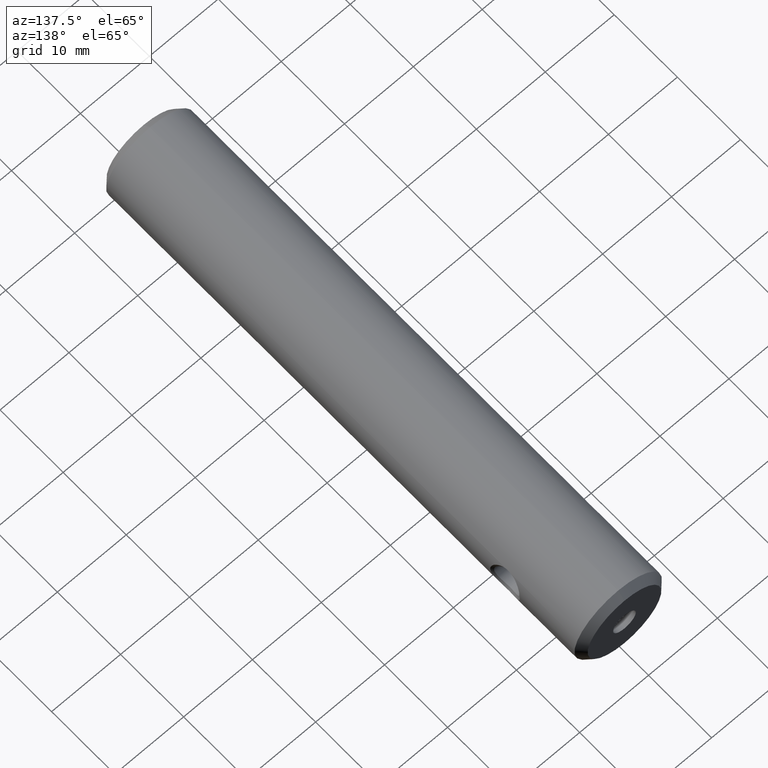
[diagram: clean part render]
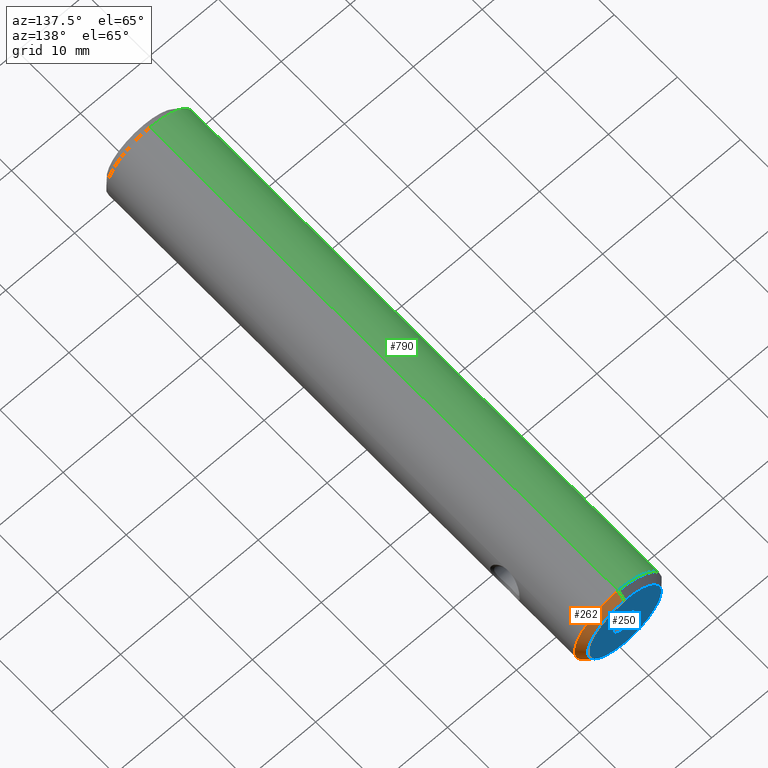
[diagram: same view with three faces highlighted in distinct colors, each labeled with its STEP entity id]
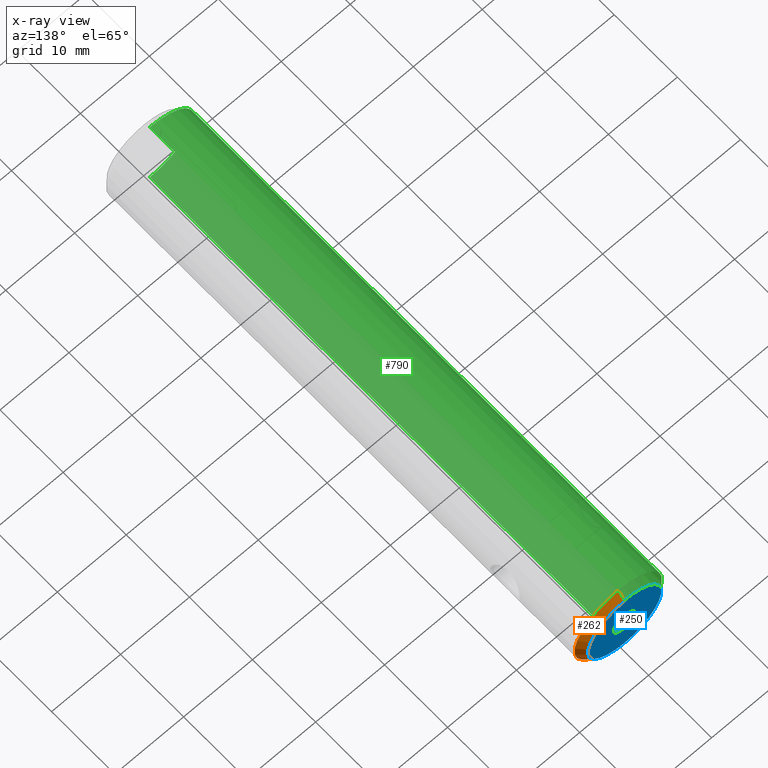
[diagram: x-ray of the same camera — body ghosted, the three highlighted faces saturated]
A machine part, auxiliary view with three faces highlighted in distinct colors.
The next image is the same camera in x-ray (body ghosted, the three faces saturated) — at least one of them is partly hidden behind the body in this view.
Their STEP definitions:

[orange] entity #262 — the highlighted conical surface has half-angle 45 deg.
#8 = CARTESIAN_POINT ( 'NONE',  ( 0.0000000000000000000, 76.20000000000000300, -5.349999999999999600 ) ) ;
#94 = LINE ( 'NONE', #964, #300 ) ;
#105 = CARTESIAN_POINT ( 'NONE',  ( 0.0000000000000000000, 76.20000000000000300, 0.0000000000000000000 ) ) ;
#130 = EDGE_LOOP ( 'NONE', ( #706, #633, #134, #474 ) ) ;
#134 = ORIENTED_EDGE ( 'NONE', *, *, #982, .F. ) ;
#191 = DIRECTION ( 'NONE',  ( 0.0000000000000000000, 0.0000000000000000000, -1.000000000000000000 ) ) ;
#193 = DIRECTION ( 'NONE',  ( -0.0000000000000000000, -1.000000000000000000, -0.0000000000000000000 ) ) ;
#217 = DIRECTION ( 'NONE',  ( 0.0000000000000000000, 0.0000000000000000000, -1.000000000000000000 ) ) ;
#262 = ADVANCED_FACE ( 'NONE', ( #1000 ), #980, .T. ) ;
#300 = VECTOR ( 'NONE', #583, 999.9999999999998900 ) ;
#337 = CARTESIAN_POINT ( 'NONE',  ( 7.164183775012015400E-016, 76.20000000000000300, 5.349999999999999600 ) ) ;
#339 = CARTESIAN_POINT ( 'NONE',  ( 0.0000000000000000000, 76.20000000000000300, 0.0000000000000000000 ) ) ;
#357 = CARTESIAN_POINT ( 'NONE',  ( 0.0000000000000000000, 75.20000000000000300, -6.349999999999999600 ) ) ;
#381 = CARTESIAN_POINT ( 'NONE',  ( 0.0000000000000000000, 75.20000000000000300, 0.0000000000000000000 ) ) ;
#388 = VERTEX_POINT ( 'NONE', #8 ) ;
#425 = EDGE_CURVE ( 'NONE', #388, #450, #987, .T. ) ;
#450 = VERTEX_POINT ( 'NONE', #337 ) ;
#462 = DIRECTION ( 'NONE',  ( 0.0000000000000000000, -0.7071067811865479100, -0.7071067811865472400 ) ) ;
#474 = ORIENTED_EDGE ( 'NONE', *, *, #685, .F. ) ;
#477 = VECTOR ( 'NONE', #462, 999.9999999999998900 ) ;
#523 = AXIS2_PLACEMENT_3D ( 'NONE', #381, #838, #217 ) ;
#531 = EDGE_CURVE ( 'NONE', #450, #846, #94, .T. ) ;
#532 = CARTESIAN_POINT ( 'NONE',  ( 0.0000000000000000000, 76.20000000000000300, -5.349999999999999600 ) ) ;
#583 = DIRECTION ( 'NONE',  ( 8.659560562354930400E-017, -0.7071067811865479100, 0.7071067811865472400 ) ) ;
#626 = AXIS2_PLACEMENT_3D ( 'NONE', #339, #655, #191 ) ;
#633 = ORIENTED_EDGE ( 'NONE', *, *, #531, .T. ) ;
#655 = DIRECTION ( 'NONE',  ( -0.0000000000000000000, -1.000000000000000000, -0.0000000000000000000 ) ) ;
#685 = EDGE_CURVE ( 'NONE', #388, #916, #761, .T. ) ;
#706 = ORIENTED_EDGE ( 'NONE', *, *, #425, .T. ) ;
#722 = CIRCLE ( 'NONE', #523, 6.349999999999999600 ) ;
#734 = DIRECTION ( 'NONE',  ( 0.0000000000000000000, 0.0000000000000000000, -1.000000000000000000 ) ) ;
#761 = LINE ( 'NONE', #532, #477 ) ;
#785 = AXIS2_PLACEMENT_3D ( 'NONE', #105, #193, #734 ) ;
#824 = CARTESIAN_POINT ( 'NONE',  ( 7.776507174585692200E-016, 75.20000000000000300, 6.349999999999999600 ) ) ;
#838 = DIRECTION ( 'NONE',  ( -0.0000000000000000000, -1.000000000000000000, -0.0000000000000000000 ) ) ;
#846 = VERTEX_POINT ( 'NONE', #824 ) ;
#916 = VERTEX_POINT ( 'NONE', #357 ) ;
#964 = CARTESIAN_POINT ( 'NONE',  ( 6.551860375438339700E-016, 76.20000000000000300, 5.349999999999999600 ) ) ;
#980 = CONICAL_SURFACE ( 'NONE', #626, 5.349999999999999600, 0.7853981633974479500 ) ;
#982 = EDGE_CURVE ( 'NONE', #916, #846, #722, .T. ) ;
#987 = CIRCLE ( 'NONE', #785, 5.349999999999999600 ) ;
#1000 = FACE_OUTER_BOUND ( 'NONE', #130, .T. ) ;

[blue] entity #250 — the highlighted planar face has unit normal (0, -1, -0).
#8 = CARTESIAN_POINT ( 'NONE',  ( 0.0000000000000000000, 76.20000000000000300, -5.349999999999999600 ) ) ;
#74 = DIRECTION ( 'NONE',  ( -0.0000000000000000000, 1.000000000000000000, -0.0000000000000000000 ) ) ;
#105 = CARTESIAN_POINT ( 'NONE',  ( 0.0000000000000000000, 76.20000000000000300, 0.0000000000000000000 ) ) ;
#138 = CIRCLE ( 'NONE', #736, 1.649999999999999500 ) ;
#193 = DIRECTION ( 'NONE',  ( -0.0000000000000000000, -1.000000000000000000, -0.0000000000000000000 ) ) ;
#195 = EDGE_LOOP ( 'NONE', ( #979, #1001 ) ) ;
#250 = ADVANCED_FACE ( 'NONE', ( #332, #546 ), #497, .F. ) ;
#255 = CARTESIAN_POINT ( 'NONE',  ( 2.020667218593132000E-016, 76.20000000000000300, -1.649999999999999200 ) ) ;
#275 = CARTESIAN_POINT ( 'NONE',  ( 0.0000000000000000000, 76.20000000000000300, 0.0000000000000000000 ) ) ;
#279 = ORIENTED_EDGE ( 'NONE', *, *, #317, .F. ) ;
#317 = EDGE_CURVE ( 'NONE', #427, #758, #823, .T. ) ;
#327 = DIRECTION ( 'NONE',  ( 0.0000000000000000000, 0.0000000000000000000, 1.000000000000000000 ) ) ;
#332 = FACE_BOUND ( 'NONE', #839, .T. ) ;
#337 = CARTESIAN_POINT ( 'NONE',  ( 7.164183775012015400E-016, 76.20000000000000300, 5.349999999999999600 ) ) ;
#351 = CARTESIAN_POINT ( 'NONE',  ( 0.0000000000000000000, 76.20000000000000300, 1.649999999999999500 ) ) ;
#388 = VERTEX_POINT ( 'NONE', #8 ) ;
#425 = EDGE_CURVE ( 'NONE', #388, #450, #987, .T. ) ;
#427 = VERTEX_POINT ( 'NONE', #255 ) ;
#435 = EDGE_CURVE ( 'NONE', #758, #427, #138, .T. ) ;
#450 = VERTEX_POINT ( 'NONE', #337 ) ;
#455 = CIRCLE ( 'NONE', #912, 5.349999999999999600 ) ;
#471 = EDGE_CURVE ( 'NONE', #450, #388, #455, .T. ) ;
#484 = CARTESIAN_POINT ( 'NONE',  ( 0.0000000000000000000, 76.20000000000000300, 0.0000000000000000000 ) ) ;
#497 = PLANE ( 'NONE',  #807 ) ;
#504 = CARTESIAN_POINT ( 'NONE',  ( 0.0000000000000000000, 76.20000000000000300, 0.0000000000000000000 ) ) ;
#546 = FACE_OUTER_BOUND ( 'NONE', #195, .T. ) ;
#554 = CARTESIAN_POINT ( 'NONE',  ( 0.0000000000000000000, 76.20000000000000300, 0.0000000000000000000 ) ) ;
#588 = DIRECTION ( 'NONE',  ( -0.0000000000000000000, -1.000000000000000000, -0.0000000000000000000 ) ) ;
#640 = DIRECTION ( 'NONE',  ( 0.0000000000000000000, 0.0000000000000000000, -1.000000000000000000 ) ) ;
#712 = DIRECTION ( 'NONE',  ( 0.0000000000000000000, -1.000000000000000000, -0.0000000000000000000 ) ) ;
#727 = DIRECTION ( 'NONE',  ( -0.0000000000000000000, 1.000000000000000000, -0.0000000000000000000 ) ) ;
#734 = DIRECTION ( 'NONE',  ( 0.0000000000000000000, 0.0000000000000000000, -1.000000000000000000 ) ) ;
#736 = AXIS2_PLACEMENT_3D ( 'NONE', #275, #727, #327 ) ;
#758 = VERTEX_POINT ( 'NONE', #351 ) ;
#769 = ORIENTED_EDGE ( 'NONE', *, *, #435, .F. ) ;
#785 = AXIS2_PLACEMENT_3D ( 'NONE', #105, #193, #734 ) ;
#807 = AXIS2_PLACEMENT_3D ( 'NONE', #484, #712, #640 ) ;
#823 = CIRCLE ( 'NONE', #996, 1.649999999999999500 ) ;
#839 = EDGE_LOOP ( 'NONE', ( #769, #279 ) ) ;
#875 = DIRECTION ( 'NONE',  ( 0.0000000000000000000, 0.0000000000000000000, -1.000000000000000000 ) ) ;
#912 = AXIS2_PLACEMENT_3D ( 'NONE', #504, #588, #875 ) ;
#935 = DIRECTION ( 'NONE',  ( 0.0000000000000000000, 0.0000000000000000000, 1.000000000000000000 ) ) ;
#979 = ORIENTED_EDGE ( 'NONE', *, *, #425, .F. ) ;
#987 = CIRCLE ( 'NONE', #785, 5.349999999999999600 ) ;
#996 = AXIS2_PLACEMENT_3D ( 'NONE', #554, #74, #935 ) ;
#1001 = ORIENTED_EDGE ( 'NONE', *, *, #471, .F. ) ;

[green] entity #790 — the highlighted cylindrical surface (partial cylindrical patch) has radius 6.35 mm, axis along (-0, -1, -0).
#13 = DIRECTION ( 'NONE',  ( -0.0000000000000000000, -1.000000000000000000, -0.0000000000000000000 ) ) ;
#24 = CARTESIAN_POINT ( 'NONE',  ( 7.776507174585692200E-016, -4.972576832151299100, 6.349999999999999600 ) ) ;
#25 = CARTESIAN_POINT ( 'NONE',  ( -6.349959001336815200, 66.55665197456414700, -0.3231135810294402700 ) ) ;
#27 = CARTESIAN_POINT ( 'NONE',  ( -5.945830538154760700, 65.17836624086741900, 2.229520232713523100 ) ) ;
#29 = ORIENTED_EDGE ( 'NONE', *, *, #433, .T. ) ;
#34 = ORIENTED_EDGE ( 'NONE', *, *, #742, .T. ) ;
#38 = CYLINDRICAL_SURFACE ( 'NONE', #927, 6.349999999999999600 ) ;
#51 = CARTESIAN_POINT ( 'NONE',  ( -5.891775500953199800, 63.59259390332466900, 2.368573169222304200 ) ) ;
#54 = B_SPLINE_CURVE_WITH_KNOTS ( 'NONE', 3,
 ( #71, #145, #809, #508, #108, #426, #666, #196, #269, #258, #330, #419, #422, #177, #721, #804, #25, #263, #510, #192, #955, #582, #801, #336, #577, #957, #882, #502, #345, #892, #27, #97, #652, #586 ),
 .UNSPECIFIED., .F., .F.,
 ( 4, 2, 2, 2, 2, 2, 2, 2, 2, 2, 2, 2, 2, 2, 2, 2, 4 ),
 ( 0.0000000000000000000, 0.03125000000000079100, 0.04687500000000118000, 0.06250000000000156800, 0.09375000000000234500, 0.1250000000000030800, 0.1562500000000038300, 0.1875000000000045800, 0.2500000000000061100, 0.2812500000000068800, 0.2968750000000072700, 0.3125000000000076600, 0.3750000000000081600, 0.4062500000000083800, 0.4218750000000073800, 0.4375000000000063800, 0.5000000000000000000 ),
 .UNSPECIFIED. ) ;
#59 = ORIENTED_EDGE ( 'NONE', *, *, #418, .F. ) ;
#61 = VERTEX_POINT ( 'NONE', #383 ) ;
#70 = FACE_BOUND ( 'NONE', #463, .T. ) ;
#71 = CARTESIAN_POINT ( 'NONE',  ( -5.857731798874053400, 64.19999999999988900, -2.451423703169199400 ) ) ;
#78 = LINE ( 'NONE', #24, #321 ) ;
#96 = B_SPLINE_CURVE_WITH_KNOTS ( 'NONE', 3,
 ( #223, #222, #127, #681, #51, #990, #540, #129, #541, #762, #382, #989, #140, #752, #303, #294, #834, #842, #375, #687, #911, #682, #220, #757, #384, #921, #929, #305, #853, #630, #847, #716, #387, #995 ),
 .UNSPECIFIED., .F., .F.,
 ( 4, 2, 2, 2, 2, 2, 2, 2, 2, 2, 2, 2, 2, 2, 2, 2, 4 ),
 ( 0.5000000000000000000, 0.5312500000000043300, 0.5468750000000051100, 0.5625000000000060000, 0.5937500000000051100, 0.6250000000000042200, 0.6562500000000042200, 0.6875000000000042200, 0.7500000000000042200, 0.7812500000000042200, 0.7968750000000042200, 0.8125000000000041100, 0.8750000000000041100, 0.9062500000000032200, 0.9218750000000038900, 0.9375000000000045500, 1.000000000000000000 ),
 .UNSPECIFIED. ) ;
#97 = CARTESIAN_POINT ( 'NONE',  ( -5.885152614196488100, 64.81027104933568200, 2.388735818825311600 ) ) ;
#108 = CARTESIAN_POINT ( 'NONE',  ( -5.891973010020911300, 64.80860864184263900, -2.368082847625214300 ) ) ;
#127 = CARTESIAN_POINT ( 'NONE',  ( -5.864346822607588500, 63.89397100093412300, 2.435796251310197800 ) ) ;
#129 = CARTESIAN_POINT ( 'NONE',  ( -5.957534707361436900, 63.15080749409264600, 2.198800742804124300 ) ) ;
#140 = CARTESIAN_POINT ( 'NONE',  ( -6.172050388587941900, 62.32932302140471800, 1.498839418548841400 ) ) ;
#145 = CARTESIAN_POINT ( 'NONE',  ( -5.857736303906900600, 64.35421831668379900, -2.451412938292385000 ) ) ;
#146 = EDGE_CURVE ( 'NONE', #846, #916, #416, .T. ) ;
#168 = DIRECTION ( 'NONE',  ( 0.0000000000000000000, 0.0000000000000000000, -1.000000000000000000 ) ) ;
#169 = CARTESIAN_POINT ( 'NONE',  ( -5.857731798874053400, 64.19999999999988900, -2.451423703169199400 ) ) ;
#177 = CARTESIAN_POINT ( 'NONE',  ( -6.230315695399322200, 66.24086240094875700, -1.234435924930815400 ) ) ;
#192 = CARTESIAN_POINT ( 'NONE',  ( -6.326095761332166700, 66.49530131536353400, 0.5561002949085147600 ) ) ;
#196 = CARTESIAN_POINT ( 'NONE',  ( -5.957913749830379600, 65.25045169655433600, -2.197778127871368600 ) ) ;
#206 = VERTEX_POINT ( 'NONE', #169 ) ;
#220 = CARTESIAN_POINT ( 'NONE',  ( -6.290868831667581600, 61.99633087349490500, -0.8679082561629112300 ) ) ;
#222 = CARTESIAN_POINT ( 'NONE',  ( -5.857703030523096800, 64.04634025187513700, 2.451492445787901700 ) ) ;
#223 = CARTESIAN_POINT ( 'NONE',  ( -5.857731802697420800, 64.20020346027074300, 2.451423694033167100 ) ) ;
#235 = ORIENTED_EDGE ( 'NONE', *, *, #146, .T. ) ;
#258 = CARTESIAN_POINT ( 'NONE',  ( -6.044716325921037000, 65.63934139673426700, -1.947430056312755100 ) ) ;
#263 = CARTESIAN_POINT ( 'NONE',  ( -6.350020422462995900, 66.55664756603947300, 0.1603466885498210600 ) ) ;
#269 = CARTESIAN_POINT ( 'NONE',  ( -5.985344257399495900, 65.38584258364416300, -2.122906829208833100 ) ) ;
#294 = CARTESIAN_POINT ( 'NONE',  ( -6.325308435114946400, 61.90508827507736100, 0.6385918090708929700 ) ) ;
#303 = CARTESIAN_POINT ( 'NONE',  ( -6.256704865848993400, 62.08835692363357600, 1.095377010964131600 ) ) ;
#305 = CARTESIAN_POINT ( 'NONE',  ( -6.000034732468149600, 62.95156860260729600, -2.079476152884510500 ) ) ;
#321 = VECTOR ( 'NONE', #569, 1000.000000000000000 ) ;
#330 = CARTESIAN_POINT ( 'NONE',  ( -6.076930254401751200, 65.75836680717193900, -1.845862912784116400 ) ) ;
#336 = CARTESIAN_POINT ( 'NONE',  ( -6.234243196447076600, 66.25165400892817000, 1.244892468320457900 ) ) ;
#345 = CARTESIAN_POINT ( 'NONE',  ( -5.985402657965269500, 65.38208310747545200, 2.121093560799028200 ) ) ;
#357 = CARTESIAN_POINT ( 'NONE',  ( 0.0000000000000000000, 75.20000000000000300, -6.349999999999999600 ) ) ;
#375 = CARTESIAN_POINT ( 'NONE',  ( -6.343876715534963600, 61.85829139954369500, -0.3203636771070481600 ) ) ;
#382 = CARTESIAN_POINT ( 'NONE',  ( -6.076465001697674700, 62.64303502129048000, 1.847401799588643400 ) ) ;
#383 = CARTESIAN_POINT ( 'NONE',  ( 7.776507174585692200E-016, 0.9999999999999991100, 6.349999999999999600 ) ) ;
#384 = CARTESIAN_POINT ( 'NONE',  ( -6.173164539887430600, 62.31556188103289900, -1.506770858486640400 ) ) ;
#387 = CARTESIAN_POINT ( 'NONE',  ( -5.857722795400071900, 63.89178901740783100, -2.451445217171760200 ) ) ;
#410 = CARTESIAN_POINT ( 'NONE',  ( 0.0000000000000000000, 0.9999999999999991100, 0.0000000000000000000 ) ) ;
#414 = CARTESIAN_POINT ( 'NONE',  ( -5.857731802697420800, 64.20020346027074300, 2.451423694033167100 ) ) ;
#415 = EDGE_LOOP ( 'NONE', ( #625, #235, #29, #59 ) ) ;
#416 = CIRCLE ( 'NONE', #702, 6.349999999999999600 ) ;
#418 = EDGE_CURVE ( 'NONE', #61, #605, #654, .T. ) ;
#419 = CARTESIAN_POINT ( 'NONE',  ( -6.141025679515568200, 65.97546472920805600, -1.619905803800193400 ) ) ;
#422 = CARTESIAN_POINT ( 'NONE',  ( -6.172325782791030900, 66.07196384796338900, -1.497684929546937700 ) ) ;
#426 = CARTESIAN_POINT ( 'NONE',  ( -5.910974152097120200, 64.95810431573063700, -2.320247162970229500 ) ) ;
#429 = FACE_OUTER_BOUND ( 'NONE', #415, .T. ) ;
#433 = EDGE_CURVE ( 'NONE', #916, #605, #539, .T. ) ;
#446 = CARTESIAN_POINT ( 'NONE',  ( 0.0000000000000000000, 0.9999999999999991100, -6.349999999999999600 ) ) ;
#463 = EDGE_LOOP ( 'NONE', ( #34, #603 ) ) ;
#482 = DIRECTION ( 'NONE',  ( 0.0000000000000000000, 0.0000000000000000000, -1.000000000000000000 ) ) ;
#502 = CARTESIAN_POINT ( 'NONE',  ( -5.999669967098739700, 65.44759531978031900, 2.080527807249318500 ) ) ;
#508 = CARTESIAN_POINT ( 'NONE',  ( -5.883914223268291700, 64.73346725133231400, -2.387958928918083100 ) ) ;
#510 = CARTESIAN_POINT ( 'NONE',  ( -6.343903829852116900, 66.54131045230492700, 0.3198822842174587900 ) ) ;
#534 = EDGE_CURVE ( 'NONE', #846, #61, #78, .T. ) ;
#539 = LINE ( 'NONE', #558, #709 ) ;
#540 = CARTESIAN_POINT ( 'NONE',  ( -5.921926655674943700, 63.36702380198111200, 2.292246890891034700 ) ) ;
#541 = CARTESIAN_POINT ( 'NONE',  ( -5.984937469672130900, 63.01536079371826600, 2.124049414045617600 ) ) ;
#544 = DIRECTION ( 'NONE',  ( -0.0000000000000000000, -1.000000000000000000, -0.0000000000000000000 ) ) ;
#558 = CARTESIAN_POINT ( 'NONE',  ( 0.0000000000000000000, -4.972576832151299100, -6.349999999999999600 ) ) ;
#569 = DIRECTION ( 'NONE',  ( -0.0000000000000000000, -1.000000000000000000, -0.0000000000000000000 ) ) ;
#575 = DIRECTION ( 'NONE',  ( -0.0000000000000000000, -1.000000000000000000, -0.0000000000000000000 ) ) ;
#577 = CARTESIAN_POINT ( 'NONE',  ( -6.172885549556541600, 66.08305891626183400, 1.507916092204719900 ) ) ;
#582 = CARTESIAN_POINT ( 'NONE',  ( -6.301194943162213800, 66.43012262313921200, 0.7896522132568665200 ) ) ;
#586 = CARTESIAN_POINT ( 'NONE',  ( -5.857731802697420800, 64.20020346027074300, 2.451423694033167100 ) ) ;
#603 = ORIENTED_EDGE ( 'NONE', *, *, #663, .T. ) ;
#605 = VERTEX_POINT ( 'NONE', #446 ) ;
#625 = ORIENTED_EDGE ( 'NONE', *, *, #534, .F. ) ;
#630 = CARTESIAN_POINT ( 'NONE',  ( -5.958703180668110600, 63.15245811197316100, -2.194981156173313200 ) ) ;
#652 = CARTESIAN_POINT ( 'NONE',  ( -5.857789347046068700, 64.50792987706192600, 2.451286190523698200 ) ) ;
#654 = CIRCLE ( 'NONE', #857, 6.349999999999999600 ) ;
#663 = EDGE_CURVE ( 'NONE', #713, #206, #96, .T. ) ;
#666 = CARTESIAN_POINT ( 'NONE',  ( -5.922237682966422100, 65.03440314510240200, -2.291444318305468500 ) ) ;
#681 = CARTESIAN_POINT ( 'NONE',  ( -5.883747896472725000, 63.66765806070430500, 2.388368156123327000 ) ) ;
#682 = CARTESIAN_POINT ( 'NONE',  ( -6.301180624178769600, 61.96908757746920300, -0.7897595285065038800 ) ) ;
#687 = CARTESIAN_POINT ( 'NONE',  ( -6.326067732640528800, 61.90408238598136100, -0.5564110071910722800 ) ) ;
#698 = CARTESIAN_POINT ( 'NONE',  ( 0.0000000000000000000, 75.20000000000000300, 0.0000000000000000000 ) ) ;
#702 = AXIS2_PLACEMENT_3D ( 'NONE', #698, #544, #482 ) ;
#709 = VECTOR ( 'NONE', #575, 1000.000000000000000 ) ;
#713 = VERTEX_POINT ( 'NONE', #414 ) ;
#716 = CARTESIAN_POINT ( 'NONE',  ( -5.885217498726593300, 63.58990390559156200, -2.388620590641295800 ) ) ;
#721 = CARTESIAN_POINT ( 'NONE',  ( -6.256756285345142400, 66.31259741907007300, -1.095059369065749700 ) ) ;
#742 = EDGE_CURVE ( 'NONE', #206, #713, #54, .T. ) ;
#744 = CARTESIAN_POINT ( 'NONE',  ( 0.0000000000000000000, -4.972576832151299100, 0.0000000000000000000 ) ) ;
#752 = CARTESIAN_POINT ( 'NONE',  ( -6.230175866343990300, 62.16025997063875500, 1.235165687788201300 ) ) ;
#757 = CARTESIAN_POINT ( 'NONE',  ( -6.234331186410790000, 62.14725045017677000, -1.244323523825083200 ) ) ;
#762 = CARTESIAN_POINT ( 'NONE',  ( -6.044287175411817300, 62.76186240273862200, 1.948757288721516300 ) ) ;
#790 = ADVANCED_FACE ( 'NONE', ( #429, #70 ), #38, .T. ) ;
#801 = CARTESIAN_POINT ( 'NONE',  ( -6.290881142674194800, 66.40285210749563300, 0.8678305087280511200 ) ) ;
#804 = CARTESIAN_POINT ( 'NONE',  ( -6.325273182238462700, 66.49563944329827300, -0.6387770456061951900 ) ) ;
#809 = CARTESIAN_POINT ( 'NONE',  ( -5.864427155873739700, 64.50686241910234700, -2.435605030657617100 ) ) ;
#816 = DIRECTION ( 'NONE',  ( 0.0000000000000000000, 0.0000000000000000000, -1.000000000000000000 ) ) ;
#824 = CARTESIAN_POINT ( 'NONE',  ( 7.776507174585692200E-016, 75.20000000000000300, 6.349999999999999600 ) ) ;
#834 = CARTESIAN_POINT ( 'NONE',  ( -6.349990946295008600, 61.84378165065780300, 0.3223658177559548000 ) ) ;
#842 = CARTESIAN_POINT ( 'NONE',  ( -6.350004523093862700, 61.84313543929211200, -0.1609153234126914400 ) ) ;
#846 = VERTEX_POINT ( 'NONE', #824 ) ;
#847 = CARTESIAN_POINT ( 'NONE',  ( -5.946219639588796300, 63.22045485429100600, -2.228485266072687500 ) ) ;
#853 = CARTESIAN_POINT ( 'NONE',  ( -5.985764347940298400, 63.01708446094123400, -2.120073357737185700 ) ) ;
#857 = AXIS2_PLACEMENT_3D ( 'NONE', #410, #13, #168 ) ;
#882 = CARTESIAN_POINT ( 'NONE',  ( -6.044138595770720100, 65.63758036139705600, 1.949212999774939700 ) ) ;
#892 = CARTESIAN_POINT ( 'NONE',  ( -5.958354783399663300, 65.24669095266720800, 2.195926033995488200 ) ) ;
#909 = DIRECTION ( 'NONE',  ( -0.0000000000000000000, -1.000000000000000000, -0.0000000000000000000 ) ) ;
#911 = CARTESIAN_POINT ( 'NONE',  ( -6.318695583625195200, 61.92318888913730000, -0.6345734731835703800 ) ) ;
#916 = VERTEX_POINT ( 'NONE', #357 ) ;
#921 = CARTESIAN_POINT ( 'NONE',  ( -6.076388041684079900, 62.64352801557583900, -1.847691284009792300 ) ) ;
#927 = AXIS2_PLACEMENT_3D ( 'NONE', #744, #909, #816 ) ;
#929 = CARTESIAN_POINT ( 'NONE',  ( -6.044502638550069300, 62.76153392915156800, -1.948086060090606000 ) ) ;
#955 = CARTESIAN_POINT ( 'NONE',  ( -6.318721271229381200, 66.47613102532645300, 0.6343262773587866600 ) ) ;
#957 = CARTESIAN_POINT ( 'NONE',  ( -6.076037875231549800, 65.75550159541111800, 1.848843010105283100 ) ) ;
#989 = CARTESIAN_POINT ( 'NONE',  ( -6.140680895073524300, 62.42587803153506300, 1.621221289910509600 ) ) ;
#990 = CARTESIAN_POINT ( 'NONE',  ( -5.910710731190962800, 63.44321256729269700, 2.320917073868888900 ) ) ;
#995 = CARTESIAN_POINT ( 'NONE',  ( -5.857731798874053400, 64.19999999999988900, -2.451423703169199400 ) ) ;